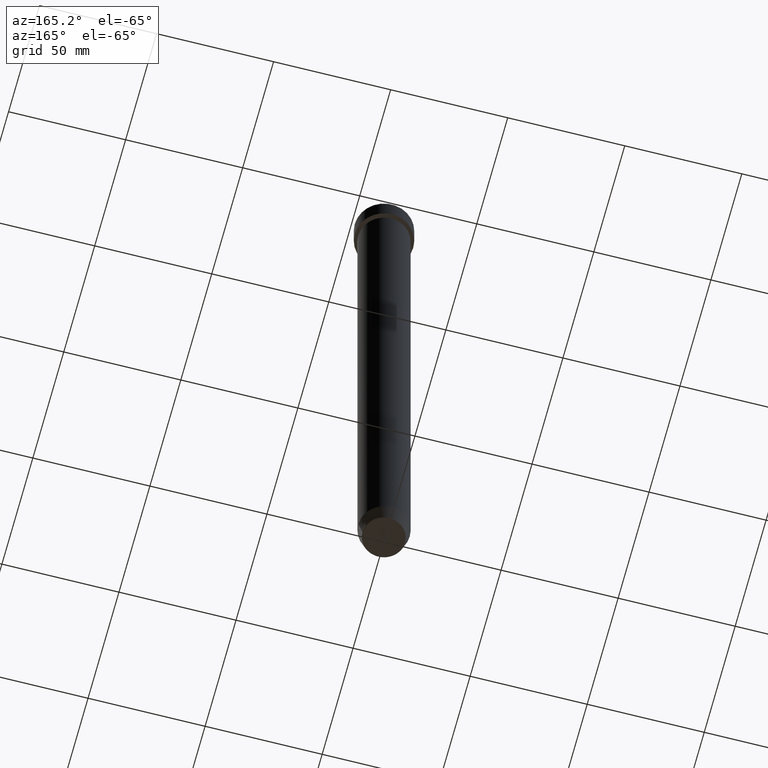
[diagram: clean part render]
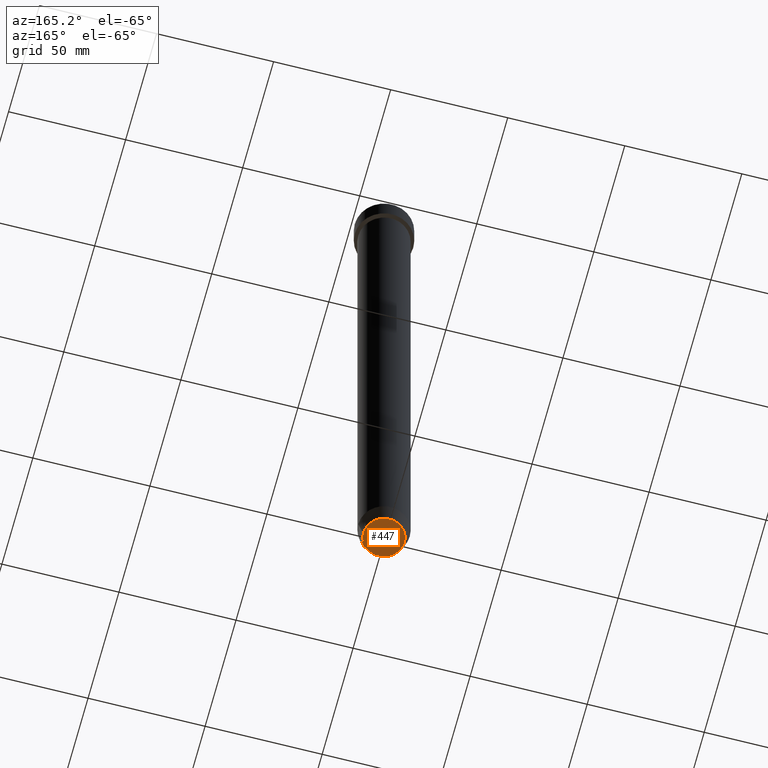
[diagram: same view with one face highlighted and labeled with its STEP entity id]
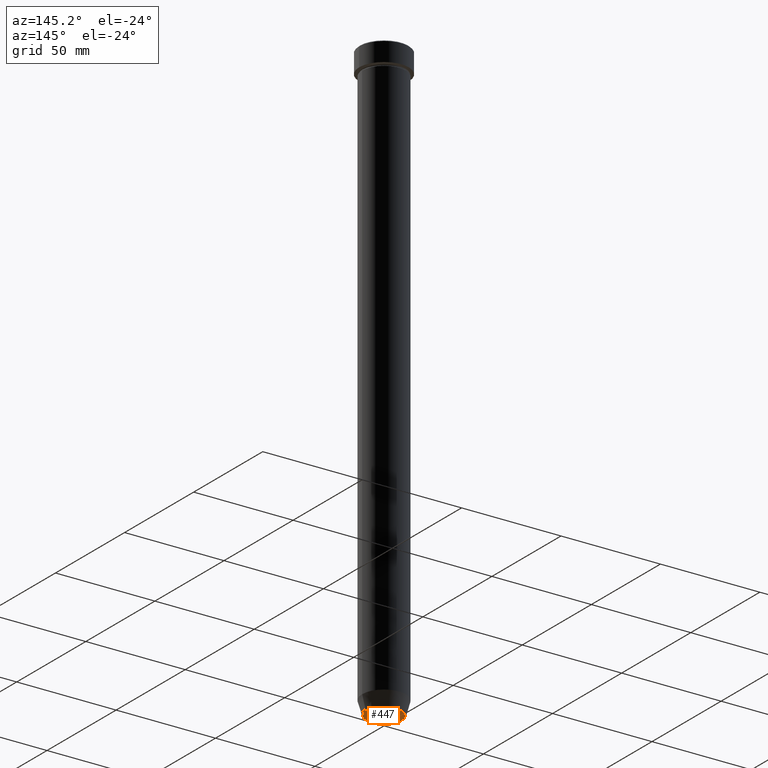
[diagram: same view with one face highlighted and labeled with its STEP entity id]
A machine part, auxiliary view. The second image highlights one B-rep face of the part: STEP entity #447.
A second angle (auxiliary view) of the same face is appended — the face is thin or edge-on in the first view.
In plain terms, the highlighted planar face has unit normal (0, -0, 1).
Its self-contained STEP definition (entity closure, byte-faithful):
#3 = DIRECTION ( 'NONE',  ( 1.000000000000000000, 0.000000000000000000, 0.000000000000000000 ) ) ;
#12 = CARTESIAN_POINT ( 'NONE',  ( 8.740692158992649397, 0.000000000000000000, -300.0000000000000568 ) ) ;
#50 = DIRECTION ( 'NONE',  ( 0.000000000000000000, 0.000000000000000000, -1.000000000000000000 ) ) ;
#87 = CARTESIAN_POINT ( 'NONE',  ( 0.000000000000000000, 0.000000000000000000, -300.0000000000000568 ) ) ;
#118 = CIRCLE ( 'NONE', #530, 8.740692158992649397 ) ;
#175 = ORIENTED_EDGE ( 'NONE', *, *, #347, .T. ) ;
#187 = CARTESIAN_POINT ( 'NONE',  ( 0.000000000000000000, 3.061616997868383753E-14, -300.0000000000000568 ) ) ;
#201 = CARTESIAN_POINT ( 'NONE',  ( 0.000000000000000000, 0.000000000000000000, -300.0000000000000568 ) ) ;
#230 = FACE_OUTER_BOUND ( 'NONE', #455, .T. ) ;
#235 = DIRECTION ( 'NONE',  ( 0.000000000000000000, 0.000000000000000000, -1.000000000000000000 ) ) ;
#236 = AXIS2_PLACEMENT_3D ( 'NONE', #201, #235, #379 ) ;
#258 = PLANE ( 'NONE',  #542 ) ;
#266 = CARTESIAN_POINT ( 'NONE',  ( -8.740692158992649397, 1.099999016768738470E-15, -300.0000000000000568 ) ) ;
#281 = ORIENTED_EDGE ( 'NONE', *, *, #439, .T. ) ;
#296 = VERTEX_POINT ( 'NONE', #12 ) ;
#340 = CIRCLE ( 'NONE', #236, 8.740692158992649397 ) ;
#347 = EDGE_CURVE ( 'NONE', #296, #405, #340, .T. ) ;
#379 = DIRECTION ( 'NONE',  ( 1.000000000000000000, 0.000000000000000000, 0.000000000000000000 ) ) ;
#405 = VERTEX_POINT ( 'NONE', #266 ) ;
#439 = EDGE_CURVE ( 'NONE', #405, #296, #118, .T. ) ;
#447 = ADVANCED_FACE ( 'NONE', ( #230 ), #258, .F. ) ;
#455 = EDGE_LOOP ( 'NONE', ( #175, #281 ) ) ;
#467 = DIRECTION ( 'NONE',  ( 0.000000000000000000, -0.000000000000000000, 1.000000000000000000 ) ) ;
#530 = AXIS2_PLACEMENT_3D ( 'NONE', #87, #50, #3 ) ;
#542 = AXIS2_PLACEMENT_3D ( 'NONE', #187, #467, #561 ) ;
#561 = DIRECTION ( 'NONE',  ( 1.000000000000000000, 0.000000000000000000, 0.000000000000000000 ) ) ;